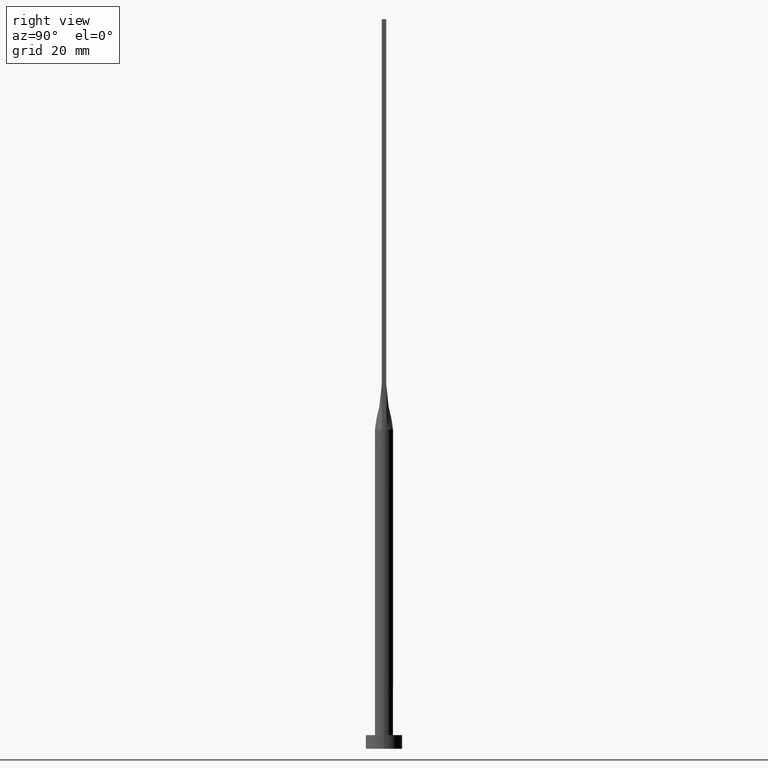
[diagram: clean part render]
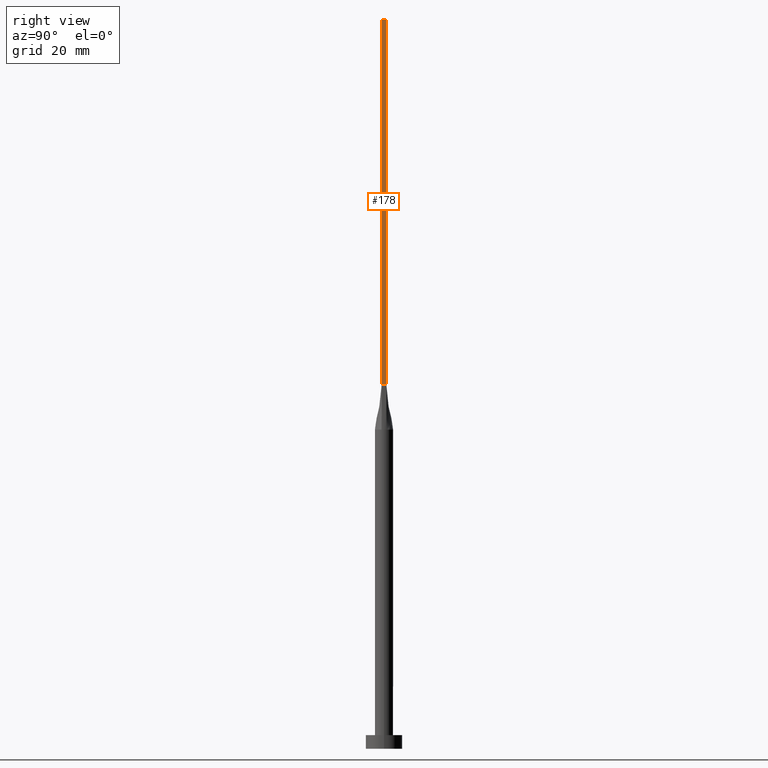
[diagram: same view with one face highlighted and labeled with its STEP entity id]
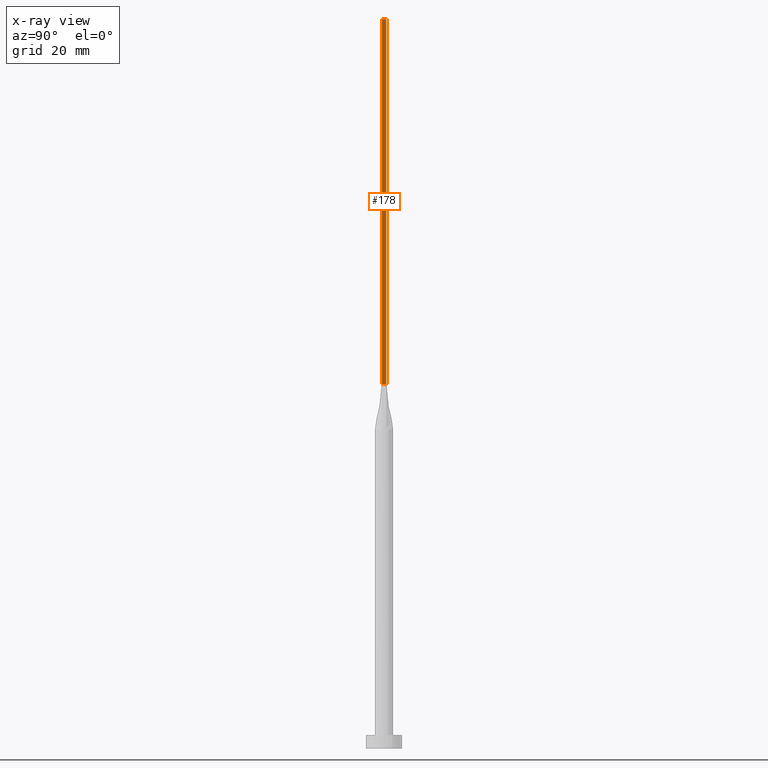
[diagram: x-ray of the same camera — body ghosted, the highlighted face saturated]
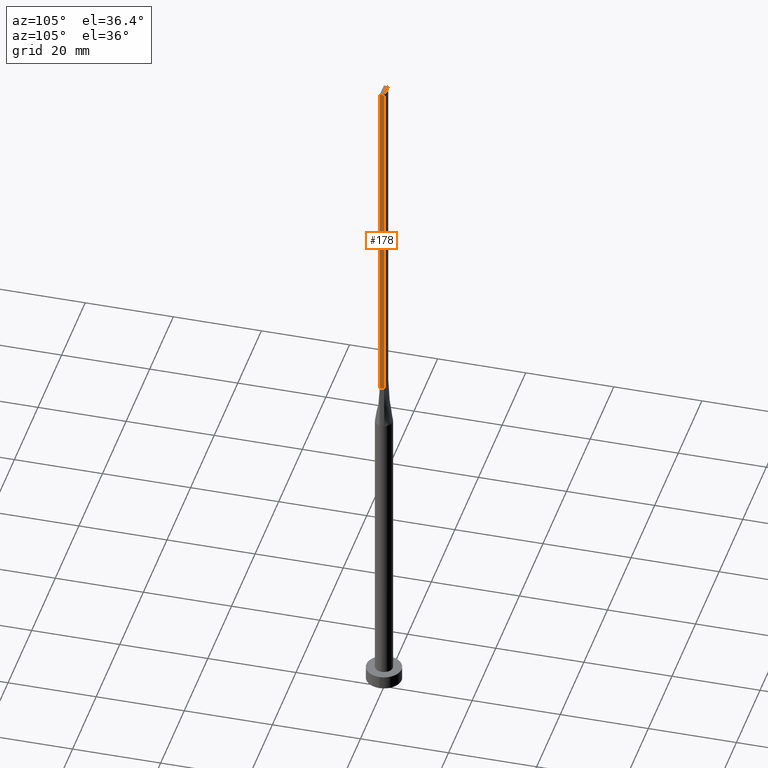
[diagram: same view with one face highlighted and labeled with its STEP entity id]
A machine part, right view. The second image highlights one B-rep face of the part: STEP entity #178.
The next image is the same camera in x-ray: the body ghosted, the highlighted face saturated — about 0% of this face is hidden behind the body in this view.
A second angle (auxiliary view) of the same face is appended — the face is thin or edge-on in the first view.
In plain terms, the highlighted planar face has unit normal (-1, -0, 0).
Its self-contained STEP definition (entity closure, byte-faithful):
#16 = CARTESIAN_POINT ( 'NONE',  ( 1.750000000000000000, -0.4999999999999997780, 160.0000000000000000 ) ) ;
#27 = LINE ( 'NONE', #16, #269 ) ;
#37 = LINE ( 'NONE', #575, #544 ) ;
#47 = PLANE ( 'NONE',  #424 ) ;
#96 = CARTESIAN_POINT ( 'NONE',  ( 1.750000000000000000, -0.4999999999999997780, 160.0000000000000000 ) ) ;
#104 = CARTESIAN_POINT ( 'NONE',  ( 1.749999999999999778, 0.5000000000000002220, 80.00000000000000000 ) ) ;
#119 = ORIENTED_EDGE ( 'NONE', *, *, #377, .F. ) ;
#121 = VECTOR ( 'NONE', #479, 1000.000000000000000 ) ;
#178 = ADVANCED_FACE ( 'NONE', ( #403 ), #47, .F. ) ;
#185 = DIRECTION ( 'NONE',  ( 2.168404344971008868E-16, -1.000000000000000000, 0.000000000000000000 ) ) ;
#198 = DIRECTION ( 'NONE',  ( -0.000000000000000000, -0.000000000000000000, -1.000000000000000000 ) ) ;
#208 = EDGE_LOOP ( 'NONE', ( #396, #548, #119, #512 ) ) ;
#209 = LINE ( 'NONE', #485, #579 ) ;
#231 = DIRECTION ( 'NONE',  ( -1.000000000000000000, -2.168404344971008868E-16, 0.000000000000000000 ) ) ;
#241 = CARTESIAN_POINT ( 'NONE',  ( 1.750000000000000000, -0.4999999999999997780, 80.00000000000000000 ) ) ;
#269 = VECTOR ( 'NONE', #198, 1000.000000000000000 ) ;
#290 = VERTEX_POINT ( 'NONE', #104 ) ;
#300 = VERTEX_POINT ( 'NONE', #241 ) ;
#344 = CARTESIAN_POINT ( 'NONE',  ( 1.749999999999999778, 0.5000000000000002220, 160.0000000000000000 ) ) ;
#373 = CARTESIAN_POINT ( 'NONE',  ( 1.750000000000000000, -0.4999999999999997780, 160.0000000000000000 ) ) ;
#377 = EDGE_CURVE ( 'NONE', #524, #428, #379, .T. ) ;
#379 = LINE ( 'NONE', #373, #121 ) ;
#389 = DIRECTION ( 'NONE',  ( -0.000000000000000000, -0.000000000000000000, -1.000000000000000000 ) ) ;
#396 = ORIENTED_EDGE ( 'NONE', *, *, #508, .T. ) ;
#403 = FACE_OUTER_BOUND ( 'NONE', #208, .T. ) ;
#416 = EDGE_CURVE ( 'NONE', #524, #300, #27, .T. ) ;
#424 = AXIS2_PLACEMENT_3D ( 'NONE', #96, #231, #185 ) ;
#428 = VERTEX_POINT ( 'NONE', #344 ) ;
#462 = CARTESIAN_POINT ( 'NONE',  ( 1.750000000000000000, -0.4999999999999997780, 160.0000000000000000 ) ) ;
#479 = DIRECTION ( 'NONE',  ( -2.168404344971008868E-16, 1.000000000000000000, 0.000000000000000000 ) ) ;
#485 = CARTESIAN_POINT ( 'NONE',  ( 1.749999999999999778, 0.5000000000000002220, 160.0000000000000000 ) ) ;
#499 = EDGE_CURVE ( 'NONE', #428, #290, #209, .T. ) ;
#508 = EDGE_CURVE ( 'NONE', #300, #290, #37, .T. ) ;
#512 = ORIENTED_EDGE ( 'NONE', *, *, #416, .T. ) ;
#524 = VERTEX_POINT ( 'NONE', #462 ) ;
#544 = VECTOR ( 'NONE', #566, 1000.000000000000000 ) ;
#548 = ORIENTED_EDGE ( 'NONE', *, *, #499, .F. ) ;
#566 = DIRECTION ( 'NONE',  ( -2.168404344971008868E-16, 1.000000000000000000, -0.000000000000000000 ) ) ;
#575 = CARTESIAN_POINT ( 'NONE',  ( 1.749999999999999778, 0.5000000000000002220, 80.00000000000000000 ) ) ;
#579 = VECTOR ( 'NONE', #389, 1000.000000000000000 ) ;